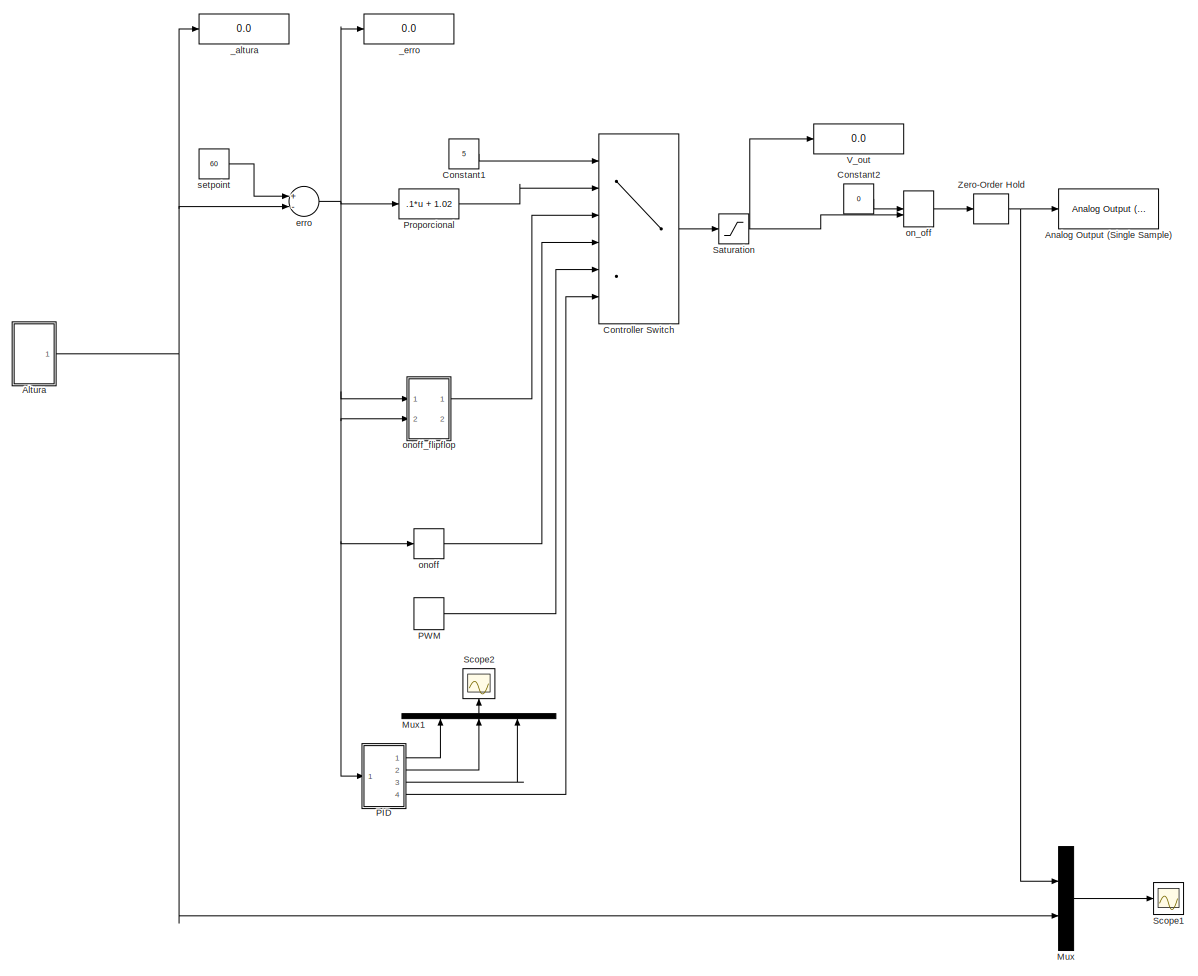
[diagram: root canvas - part 1/1, most of the canvas]
MODEL slx_c9c091c711e0
KIND model
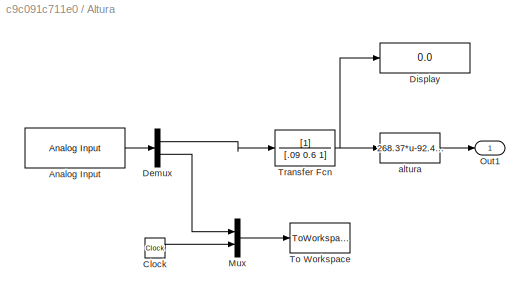
BLOCK [SubSystem] Altura
  FunctionWithSeparateData = off
  MaskHideContents = off
  MinAlgLoopOccurrences = off
  Opaque = off
  Ports = [0, 1]
  PropExecContextOutsideSubsystem = off
  RTWSystemCode = Auto
  RequestExecContextInheritance = off
BLOCK [Reference] Altura/Analog Input  REF=daqlib/Analog Input
  AcqMode = 0
  ActualRate = 200
  Channels = 1$0$$2$#0$1$$2$#0$2$$2$#0$3$$2$#0$4$$2$#0$5$$2$#0$6$$2$#0$7$$2$#
  DataType = double
  Device = nidaq Dev1 (USB-6009)
  DeviceMenu = nidaq Dev1 (USB-6009)
  InputType = SingleEnded
  NChannelsSelected = 1
  NPorts = 1 for all hardware channels
  ObjConstructor = analoginput('nidaq','Dev1')
  Ports = [0, 1]
  SampleRate = 200
  SamplesPerFrame = 2
  SignalType = Sample-based
  SourceBlock = daqlib/Analog Input
  SourceType = Analog Input
BLOCK [Clock] Altura/Clock
BLOCK [Demux] Altura/Demux
  DisplayOption = bar
  Outputs = 2
  Ports = [1, 2]
BLOCK [Display] Altura/Display
  Decimation = 1
  Lockdown = off
  Ports = [1]
BLOCK [Mux] Altura/Mux
  DisplayOption = bar
  Inputs = 2
  Ports = [2, 1]
BLOCK [Outport] Altura/Out1
  IconDisplay = Port number
BLOCK [ToWorkspace] Altura/To Workspace
  MaxDataPoints = inf
  Ports = [1]
  SampleTime = -1
  VariableName = sensor_data
BLOCK [TransferFcn] Altura/Transfer Fcn
  Denominator = [.09 0.6 1]
BLOCK [Fcn] Altura/altura
  Expr = 268.37*u-92.416
BLOCK [Reference] Analog Output (Single Sample)  REF=daqlib/Analog Output
(Single Sample)
  Channels = 1$0$$1$0$#0$1$$1$0$#
  Device = nidaq Dev1 (USB-6009)
  DeviceMenu = nidaq Dev1 (USB-6009)
  NChannelsSelected = 1
  NPorts = 1 for all hardware channels
  ObjConstructor = analogoutput('nidaq','Dev1')
  Ports = [1]
  SourceBlock = daqlib/Analog Output\n(Single Sample)
  SourceType = Analog Output (Single Sample)
BLOCK [Constant] Constant1
  Value = 5
BLOCK [Constant] Constant2
  Value = 0
BLOCK [MultiPortSwitch] Controller Switch
  InputSameDT = off
  Inputs = 5
  Ports = [6, 1]
  SaturateOnIntegerOverflow = off
BLOCK [Mux] Mux
  DisplayOption = bar
  Inputs = 2
  Ports = [2, 1]
BLOCK [Mux] Mux1
  DisplayOption = bar
  Inputs = 3
  Ports = [3, 1]
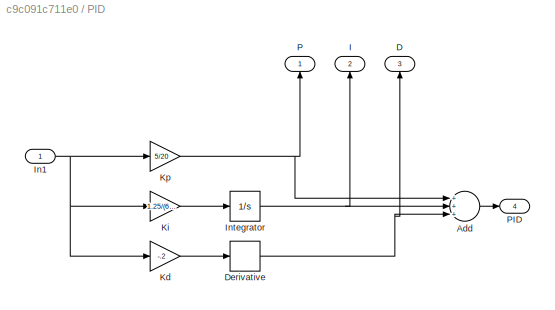
BLOCK [SubSystem] PID
  FunctionWithSeparateData = off
  MaskHideContents = off
  MinAlgLoopOccurrences = off
  Opaque = off
  Ports = [1, 4]
  PropExecContextOutsideSubsystem = off
  RTWSystemCode = Auto
  RequestExecContextInheritance = off
BLOCK [Sum] PID/Add
  InputSameDT = off
  Inputs = +++
  OutDataTypeStr = Inherit: Inherit via internal rule
  Ports = [3, 1]
  SaturateOnIntegerOverflow = off
BLOCK [Outport] PID/D
  IconDisplay = Port number
  Port = 3
BLOCK [Derivative] PID/Derivative
BLOCK [Outport] PID/I
  IconDisplay = Port number
  Port = 2
BLOCK [Inport] PID/In1
  IconDisplay = Port number
BLOCK [Integrator] PID/Integrator
  Ports = [1, 1]
BLOCK [Gain] PID/Kd
  Gain = -.2
  OutDataTypeStr = Inherit: Inherit via internal rule
  ParamDataTypeStr = Inherit: Inherit via internal rule
  SaturateOnIntegerOverflow = off
BLOCK [Gain] PID/Ki
  Gain = 1.25/(60*25/2)
  OutDataTypeStr = Inherit: Inherit via internal rule
  ParamDataTypeStr = Inherit: Inherit via internal rule
  SaturateOnIntegerOverflow = off
BLOCK [Gain] PID/Kp
  Gain = 5/20
  OutDataTypeStr = Inherit: Inherit via internal rule
  ParamDataTypeStr = Inherit: Inherit via internal rule
  SaturateOnIntegerOverflow = off
BLOCK [Outport] PID/P
  IconDisplay = Port number
BLOCK [Outport] PID/PID
  IconDisplay = Port number
  Port = 4
BLOCK [DiscretePulseGenerator] PWM
  Amplitude = 5
  Period = 1
  Ports = [0, 1]
  PulseType = Time based
  PulseWidth = 10
BLOCK [Fcn] Proporcional 
  Expr = .1*u + 1.02
BLOCK [Saturate] Saturation
  InputPortMap = u0
  LowerLimit = 0
  Ports = [1, 1]
  UpperLimit = 5
BLOCK [Scope] Scope1
  DataFormat = StructureWithTime
  Floating = off
  NumInputPorts = 1
  Ports = [1]
  SampleTime = 0
  SaveName = ScopeData1
  ShowLegends = off
  TimeRange = 10
  YMax = 65
  YMin = 0
BLOCK [Scope] Scope2
  DataFormat = StructureWithTime
  Floating = off
  NumInputPorts = 1
  Ports = [1]
  SampleTime = 0
  SaveName = ScopeData2
  ShowLegends = off
  YMax = 2.25
  YMin = -1.25
BLOCK [Display] V_out
  Decimation = 5
  Lockdown = off
  Ports = [1]
BLOCK [ZeroOrderHold] Zero-Order Hold
  SampleTime = .01
BLOCK [Display] _altura
  Decimation = 1
  Lockdown = off
  Ports = [1]
BLOCK [Display] _erro
  Decimation = 1
  Lockdown = off
  Ports = [1]
BLOCK [Sum] erro
  InputSameDT = off
  Inputs = +-
  OutDataTypeStr = Inherit: Inherit via internal rule
  Ports = [2, 1]
  SaturateOnIntegerOverflow = off
BLOCK [ManualSwitch] on_off
  CurrentSetting = 0
BLOCK [Relay] onoff
  InputProcessing = Elements as channels (sample based)
  OffOutputValue = 1
  OffSwitchValue = -10
  OnOutputValue = 5
  OnSwitchValue = 10
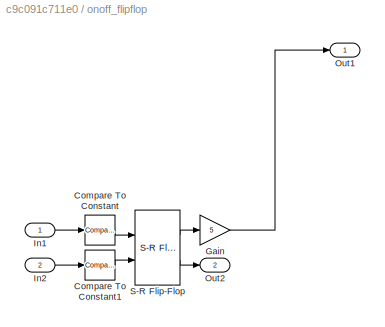
BLOCK [SubSystem] onoff_flipflop
  FunctionWithSeparateData = off
  MaskHideContents = off
  MinAlgLoopOccurrences = off
  Opaque = off
  Ports = [2, 2]
  PropExecContextOutsideSubsystem = off
  RTWSystemCode = Auto
  RequestExecContextInheritance = off
BLOCK [Reference] onoff_flipflop/Compare To Constant  REF=simulink/Logic and Bit
Operations/Compare
To Constant
  OutDataTypeStr = boolean
  Ports = [1, 1]
  SourceBlock = simulink/Logic and Bit\nOperations/Compare\nTo Constant
  SourceType = Compare To Constant
  ZeroCross = on
  const = 20
  relop = >
BLOCK [Reference] onoff_flipflop/Compare To Constant1  REF=simulink/Logic and Bit
Operations/Compare
To Constant
  OutDataTypeStr = boolean
  Ports = [1, 1]
  SourceBlock = simulink/Logic and Bit\nOperations/Compare\nTo Constant
  SourceType = Compare To Constant
  ZeroCross = on
  const = -20
  relop = <
BLOCK [Gain] onoff_flipflop/Gain
  Gain = 5
  OutDataTypeStr = Inherit: Inherit via internal rule
  ParamDataTypeStr = Inherit: Inherit via internal rule
  SaturateOnIntegerOverflow = off
BLOCK [Inport] onoff_flipflop/In1
  IconDisplay = Port number
BLOCK [Inport] onoff_flipflop/In2
  IconDisplay = Port number
  Port = 2
BLOCK [Outport] onoff_flipflop/Out1
  IconDisplay = Port number
BLOCK [Outport] onoff_flipflop/Out2
  IconDisplay = Port number
  Port = 2
BLOCK [Reference] onoff_flipflop/S-R Flip-Flop  REF=simulink_extras/Flip Flops/S-R
Flip-Flop
  Ports = [2, 2]
  SourceBlock = simulink_extras/Flip Flops/S-R\nFlip-Flop
  SourceType = SRFlipFlop
  initial_condition = 0
BLOCK [Constant] setpoint
  Value = 60
LINE Altura/Analog Input:1 -> Altura/Demux:1
LINE Altura/Clock:1 -> Altura/Mux:2
LINE Altura/Demux:1 -> Altura/Transfer Fcn:1
LINE Altura/Demux:2 -> Altura/Mux:1
LINE Altura/Mux:1 -> Altura/To Workspace:1
NET Altura/Transfer Fcn:1 -> Altura/Display:1, Altura/altura:1
LINE Altura/altura:1 -> Altura/Out1:1
NET Altura:1 -> Mux:2, _altura:1, erro:2
LINE Constant1:1 -> Controller Switch:1
LINE Constant2:1 -> on_off:1
LINE Controller Switch:1 -> Saturation:1
LINE Mux1:1 -> Scope2:1
LINE Mux:1 -> Scope1:1
LINE PID/Add:1 -> PID/PID:1
NET PID/Derivative:1 -> PID/Add:3, PID/D:1
NET PID/In1:1 -> PID/Kd:1, PID/Ki:1, PID/Kp:1
NET PID/Integrator:1 -> PID/Add:2, PID/I:1
LINE PID/Kd:1 -> PID/Derivative:1
LINE PID/Ki:1 -> PID/Integrator:1
NET PID/Kp:1 -> PID/Add:1, PID/P:1
LINE PID:1 -> Mux1:1
LINE PID:2 -> Mux1:2
LINE PID:3 -> Mux1:3
LINE PID:4 -> Controller Switch:6
LINE PWM:1 -> Controller Switch:5
LINE Proporcional :1 -> Controller Switch:2
NET Saturation:1 -> V_out:1, on_off:2
NET Zero-Order Hold:1 -> Analog Output (Single Sample):1, Mux:1
NET erro:1 -> PID:1, Proporcional :1, _erro:1, onoff:1, onoff_flipflop:1, onoff_flipflop:2
LINE on_off:1 -> Zero-Order Hold:1
LINE onoff:1 -> Controller Switch:4
LINE onoff_flipflop/Compare To Constant1:1 -> onoff_flipflop/S-R Flip-Flop:2
LINE onoff_flipflop/Compare To Constant:1 -> onoff_flipflop/S-R Flip-Flop:1
LINE onoff_flipflop/Gain:1 -> onoff_flipflop/Out1:1
LINE onoff_flipflop/In1:1 -> onoff_flipflop/Compare To Constant:1
LINE onoff_flipflop/In2:1 -> onoff_flipflop/Compare To Constant1:1
LINE onoff_flipflop/S-R Flip-Flop:1 -> onoff_flipflop/Gain:1
LINE onoff_flipflop/S-R Flip-Flop:2 -> onoff_flipflop/Out2:1
LINE onoff_flipflop:1 -> Controller Switch:3
LINE setpoint:1 -> erro:1
note: NET lines group one-source signal fan-out (src -> all destinations, sorted); 1:1 wires keep LINE
